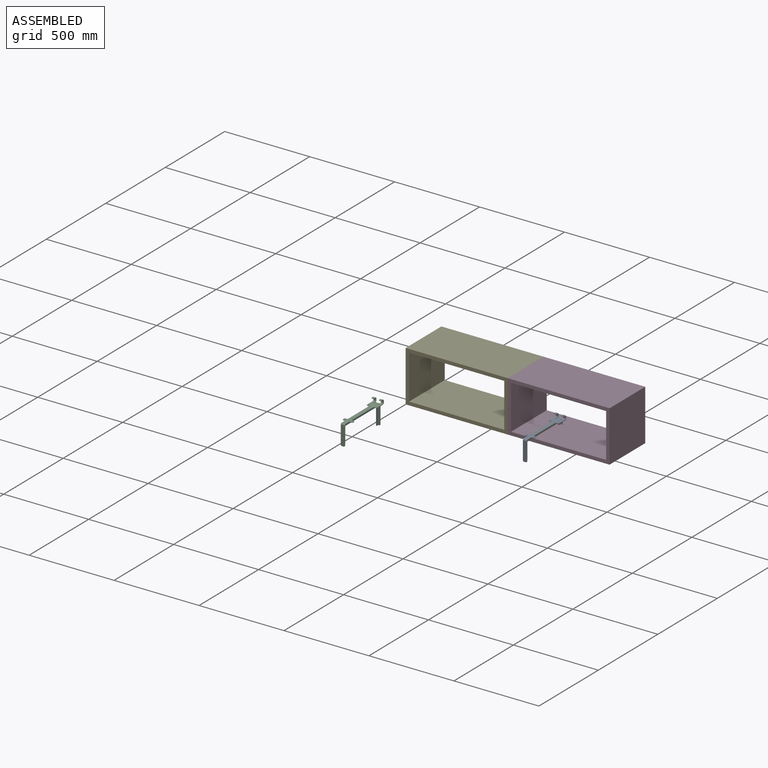
[diagram: assembled view]
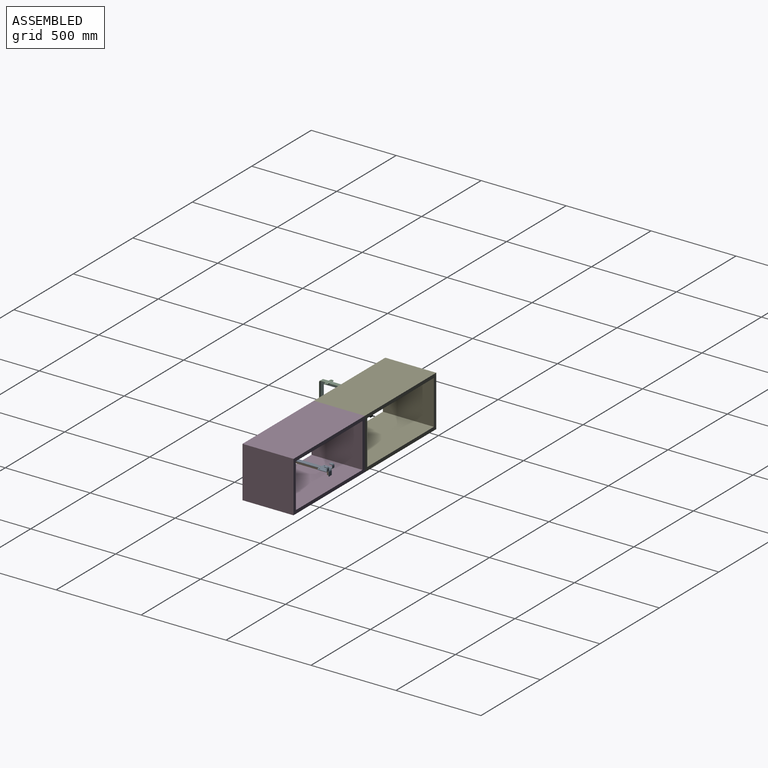
[diagram: assembled view, second angle]
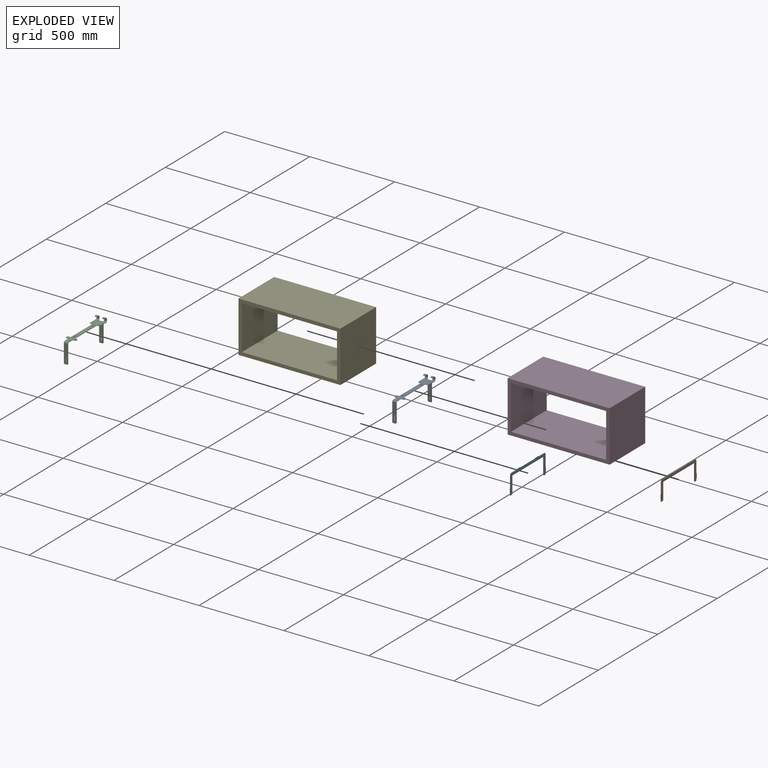
[diagram: exploded view]
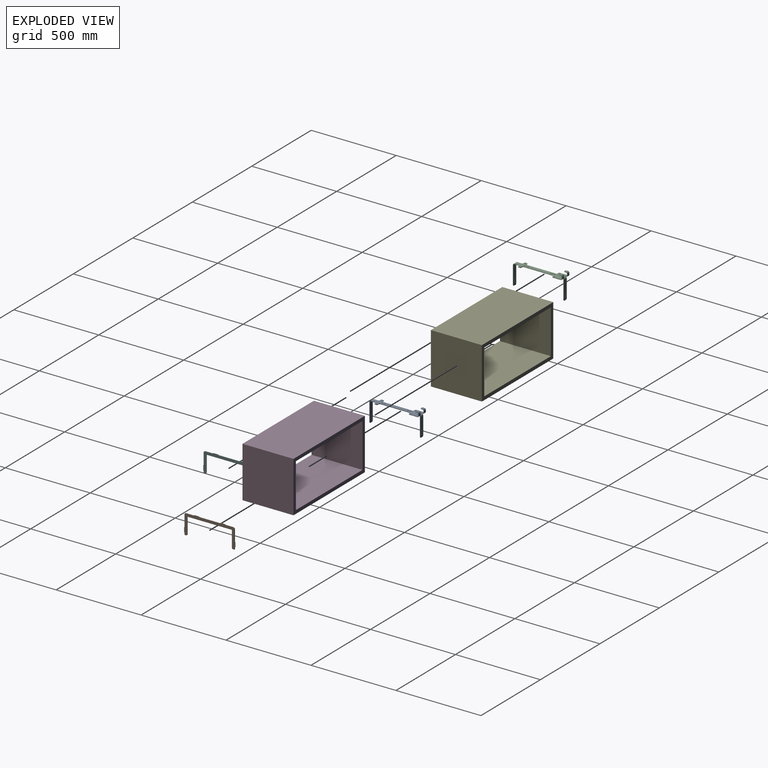
[diagram: exploded view, second angle]
ASSEMBLY  parts=6 mates=3
PART A: 138 faces, bbox 60x303x143 mm
  f0: plane 9.5x3mm, normal (1,0,0), area 28.5mm2, adj f28,f29,f33,f126
  f1: plane 3x1mm, normal (0,1,0), area 3mm2, adj f28,f29,f33,f52
  f2: plane 12.5x3mm, normal (-1,0,0), area 37.5mm2, adj f28,f29,f52,f88
  f3: plane 46x3mm, normal (1,0,0), area 138mm2, adj f28,f29,f42,f89
  f4: plane 6x3mm, normal (0,-1,0), area 18mm2, adj f28,f29,f35,f42
  f5: plane 172x3mm, normal (1,0,0), area 516mm2, adj f28,f29,f31,f35
  f6: plane 6x3mm, normal (0,1,0), area 18mm2, adj f28,f29,f31,f37
  f7: plane 6x3mm, normal (1,0,0), area 18mm2, adj f28,f29,f37,f39
  f8: plane 6x3mm, normal (0,-1,0), area 18mm2, adj f28,f29,f39,f48
  f9: plane 25x3mm, normal (1,0,0), area 75mm2, adj f28,f29,f48,f70
  f10: plane 25x3mm, normal (-1,0,0), area 75mm2, adj f28,f29,f30,f69
  f11: plane 6x3mm, normal (0,-1,0), area 18mm2, adj f28,f29,f30,f34
  f12: plane 6x3mm, normal (-1,0,0), area 18mm2, adj f28,f29,f34,f36
  f13: plane 6x3mm, normal (0,1,0), area 18mm2, adj f28,f29,f36,f44
  f14: plane 172x3mm, normal (-1,0,0), area 516mm2, adj f28,f29,f41,f44
  f15: plane 6x3mm, normal (0,-1,0), area 18mm2, adj f28,f29,f40,f41
  f16: plane 46x3mm, normal (-1,0,0), area 138mm2, adj f28,f29,f40,f107
  f17: plane 12.5x3mm, normal (1,0,0), area 37.5mm2, adj f28,f29,f53,f108
  f18: plane 3x1mm, normal (0,1,0), area 3mm2, adj f28,f29,f51,f53
  f19: plane 9.5x3mm, normal (-1,0,0), area 28.5mm2, adj f28,f29,f51,f127
  f20: plane 29x3mm, normal (1,0,0), area 87mm2, adj f28,f29,f43,f50
  f21: plane 3x2.2mm, normal (0,1,0), area 6.6mm2, adj f28,f29,f32,f50
  f22: plane 29x3mm, normal (-1,0,0), area 87mm2, adj f28,f29,f32,f45
  f23: plane 3x2.2mm, normal (0,-1,0), area 6.6mm2, adj f28,f29,f38,f49
  f24: plane 29x3mm, normal (1,0,0), area 87mm2, adj f28,f29,f38,f46
  f25: plane 3x2.2mm, normal (0,1,0), area 6.6mm2, adj f28,f29,f46,f47
  f26: plane 29x3mm, normal (-1,0,0), area 87mm2, adj f28,f29,f47,f49
  f27: plane 3x2.2mm, normal (0,-1,0), area 6.6mm2, adj f28,f29,f43,f45
  f28: plane 285x60mm, normal (0,0,-1), area 8890.7mm2, adj f0,f1,f2,f3,f4,f5,f6,f7
  f29: plane 285x60mm, normal (0,0,1), area 8981mm2, adj f0,f1,f2,f3,f4,f5,f6,f7
  f30: cylinder r=6mm len=6mm, axis (0,0,-1), area 28.3mm2, adj f10,f11,f28,f29
  f31: cylinder r=6mm len=6mm, axis (0,0,1), area 28.3mm2, adj f5,f6,f28,f29
  f32: cylinder r=0.5mm len=3mm, axis (0,0,-1), area 2.4mm2, adj f21,f22,f28,f29
  f33: cylinder r=0.5mm len=3mm, axis (0,0,1), area 2.4mm2, adj f0,f1,f28,f29
  f34: cylinder r=6mm len=6mm, axis (0,0,1), area 28.3mm2, adj f11,f12,f28,f29
  f35: cylinder r=6mm len=6mm, axis (0,0,-1), area 28.3mm2, adj f4,f5,f28,f29
  f36: cylinder r=6mm len=6mm, axis (0,0,1), area 28.3mm2, adj f12,f13,f28,f29
  f37: cylinder r=6mm len=6mm, axis (0,0,1), area 28.3mm2, adj f6,f7,f28,f29
  f38: cylinder r=0.5mm len=3mm, axis (0,0,1), area 2.4mm2, adj f23,f24,f28,f29
  f39: cylinder r=6mm len=6mm, axis (0,0,1), area 28.3mm2, adj f7,f8,f28,f29
  f40: cylinder r=6mm len=6mm, axis (0,0,-1), area 28.3mm2, adj f15,f16,f28,f29
  f41: cylinder r=6mm len=6mm, axis (0,0,-1), area 28.3mm2, adj f14,f15,f28,f29
  f42: cylinder r=6mm len=6mm, axis (0,0,-1), area 28.3mm2, adj f3,f4,f28,f29
  f43: cylinder r=0.5mm len=3mm, axis (0,0,-1), area 2.4mm2, adj f20,f27,f28,f29
  f44: cylinder r=6mm len=6mm, axis (0,0,1), area 28.3mm2, adj f13,f14,f28,f29
  f45: cylinder r=0.5mm len=3mm, axis (0,0,1), area 2.4mm2, adj f22,f27,f28,f29
  f46: cylinder r=0.5mm len=3mm, axis (0,0,-1), area 2.4mm2, adj f24,f25,f28,f29
  f47: cylinder r=0.5mm len=3mm, axis (0,0,1), area 2.4mm2, adj f25,f26,f28,f29
  f48: cylinder r=6mm len=6mm, axis (0,0,-1), area 28.3mm2, adj f8,f9,f28,f29
  f49: cylinder r=0.5mm len=3mm, axis (0,0,-1), area 2.4mm2, adj f23,f26,f28,f29
  f50: cylinder r=0.5mm len=3mm, axis (0,0,1), area 2.4mm2, adj f20,f21,f28,f29
  f51: cylinder r=0.5mm len=3mm, axis (0,0,1), area 2.4mm2, adj f18,f19,f28,f29
  f52: cylinder r=0.5mm len=3mm, axis (0,0,-1), area 2.4mm2, adj f1,f2,f28,f29
  f53: cylinder r=0.5mm len=3mm, axis (0,0,-1), area 2.4mm2, adj f17,f18,f28,f29
  f54: plane 29x3mm, normal (-1,0,0), area 87mm2, adj f61,f62,f63,f67
  f55: plane 3x2.2mm, normal (0,0,-1), area 6.6mm2, adj f61,f62,f67,f68
  f56: plane 29x3mm, normal (1,0,0), area 87mm2, adj f61,f62,f66,f68
  f57: plane 12x3mm, normal (0,0,-1), area 36mm2, adj f61,f62,f64,f65
  f58: plane 105x3mm, normal (-1,0,0), area 315mm2, adj f61,f62,f65,f69
  f59: plane 105x3mm, normal (1,0,0), area 315mm2, adj f61,f62,f64,f70
  f60: plane 3x2.2mm, normal (0,0,1), area 6.6mm2, adj f61,f62,f63,f66
  f61: plane 111x24mm, normal (0,1,0), area 2552.8mm2, adj f54,f55,f56,f57,f58,f59,f60,f63
  f62: plane 111x24mm, normal (0,-1,0), area 2552.8mm2, adj f54,f55,f56,f57,f58,f59,f60,f63
  f63: cylinder r=0.5mm len=3mm, axis (0,1,0), area 2.4mm2, adj f54,f60,f61,f62
  f64: cylinder r=6mm len=6mm, axis (0,-1,0), area 28.3mm2, adj f57,f59,f61,f62
  f65: cylinder r=6mm len=6mm, axis (0,1,0), area 28.3mm2, adj f57,f58,f61,f62
  f66: cylinder r=0.5mm len=3mm, axis (0,-1,0), area 2.4mm2, adj f56,f60,f61,f62
  f67: cylinder r=0.5mm len=3mm, axis (0,1,0), area 2.4mm2, adj f54,f55,f61,f62
  f68: cylinder r=0.5mm len=3mm, axis (0,-1,0), area 2.4mm2, adj f55,f56,f61,f62
  f69: plane 9x9mm, normal (-1,0,0), area 35.3mm2, adj f10,f58,f71,f72
  f70: plane 9x9mm, normal (1,0,0), area 35.3mm2, adj f9,f59,f71,f72
  f71: cylinder r=9mm len=24mm, axis (-1,0,0), area 339.3mm2, adj f29,f62,f69,f70
  f72: cylinder r=6mm len=24mm, axis (-1,0,0), area 226.2mm2, adj f28,f61,f69,f70
  f73: plane 8x3mm, normal (1,0,0), area 24mm2, adj f75,f76,f85,f89
  f74: plane 8x3mm, normal (-1,0,0), area 24mm2, adj f75,f76,f84,f88
  f75: plane 16x8mm, normal (0,1,0), area 128mm2, adj f73,f74,f86,f90
  f76: plane 16x8mm, normal (0,-1,0), area 128mm2, adj f73,f74,f87,f91
  f77: plane 4x3mm, normal (0,-1,0), area 12mm2, adj f80,f81,f82,f83
  f78: plane 7x3mm, normal (1,0,0), area 21mm2, adj f80,f81,f82,f85
  f79: plane 7x3mm, normal (-1,0,0), area 21mm2, adj f80,f81,f83,f84
  f80: plane 16x13mm, normal (0,0,1), area 192.5mm2, adj f77,f78,f79,f82,f83,f86
  f81: plane 16x13mm, normal (0,0,-1), area 192.5mm2, adj f77,f78,f79,f82,f83,f87
  f82: cylinder r=6mm len=6mm, axis (0,0,1), area 28.3mm2, adj f77,f78,f80,f81
  f83: cylinder r=6mm len=6mm, axis (0,0,-1), area 28.3mm2, adj f77,f79,f80,f81
  f84: plane 9x9mm, normal (-1,0,0), area 35.3mm2, adj f74,f79,f86,f87
  f85: plane 9x9mm, normal (1,0,0), area 35.3mm2, adj f73,f78,f86,f87
  f86: cylinder r=9mm len=16mm, axis (-1,0,0), area 226.2mm2, adj f75,f80,f84,f85
  f87: cylinder r=6mm len=16mm, axis (-1,0,0), area 150.8mm2, adj f76,f81,f84,f85
  f88: plane 9x9mm, normal (-1,0,0), area 35.3mm2, adj f2,f74,f90,f91
  f89: plane 9x9mm, normal (1,0,0), area 35.3mm2, adj f3,f73,f90,f91
  f90: cylinder r=9mm len=16mm, axis (-1,0,0), area 226.2mm2, adj f28,f75,f88,f89
  f91: cylinder r=6mm len=16mm, axis (-1,0,0), area 150.8mm2, adj f29,f76,f88,f89
  f92: plane 8x3mm, normal (-1,0,0), area 24mm2, adj f94,f95,f103,f107
  f93: plane 8x3mm, normal (1,0,0), area 24mm2, adj f94,f95,f104,f108
  f94: plane 16x8mm, normal (0,1,0), area 128mm2, adj f92,f93,f105,f109
  f95: plane 16x8mm, normal (0,-1,0), area 128mm2, adj f92,f93,f106,f110
  f96: plane 7x3mm, normal (-1,0,0), area 21mm2, adj f99,f100,f102,f103
  f97: plane 4x3mm, normal (0,-1,0), area 12mm2, adj f99,f100,f101,f102
  f98: plane 7x3mm, normal (1,0,0), area 21mm2, adj f99,f100,f101,f104
  f99: plane 16x13mm, normal (0,0,1), area 192.5mm2, adj f96,f97,f98,f101,f102,f105
  f100: plane 16x13mm, normal (0,0,-1), area 192.5mm2, adj f96,f97,f98,f101,f102,f106
  f101: cylinder r=6mm len=6mm, axis (0,0,1), area 28.3mm2, adj f97,f98,f99,f100
  f102: cylinder r=6mm len=6mm, axis (0,0,1), area 28.3mm2, adj f96,f97,f99,f100
  f103: plane 9x9mm, normal (-1,0,0), area 35.3mm2, adj f92,f96,f105,f106
  f104: plane 9x9mm, normal (1,0,0), area 35.3mm2, adj f93,f98,f105,f106
  f105: cylinder r=9mm len=16mm, axis (-1,0,0), area 226.2mm2, adj f94,f99,f103,f104
  f106: cylinder r=6mm len=16mm, axis (-1,0,0), area 150.8mm2, adj f95,f100,f103,f104
  f107: plane 9x9mm, normal (-1,0,0), area 35.3mm2, adj f16,f92,f109,f110
  f108: plane 9x9mm, normal (1,0,0), area 35.3mm2, adj f17,f93,f109,f110
  f109: cylinder r=9mm len=16mm, axis (-1,0,0), area 226.2mm2, adj f28,f94,f107,f108
  f110: cylinder r=6mm len=16mm, axis (-1,0,0), area 150.8mm2, adj f29,f95,f107,f108
  f111: plane 29x3mm, normal (1,0,0), area 87mm2, adj f118,f119,f121,f123
  f112: plane 3x2.2mm, normal (0,0,-1), area 6.6mm2, adj f118,f119,f123,f124
  f113: plane 29x3mm, normal (-1,0,0), area 87mm2, adj f118,f119,f120,f124
  f114: plane 12x3mm, normal (0,0,-1), area 36mm2, adj f118,f119,f122,f125
  f115: plane 105x3mm, normal (1,0,0), area 315mm2, adj f118,f119,f122,f126
  f116: plane 105x3mm, normal (-1,0,0), area 315mm2, adj f118,f119,f125,f127
  f117: plane 3x2.2mm, normal (0,0,1), area 6.6mm2, adj f118,f119,f120,f121
  f118: plane 111x24mm, normal (0,-1,0), area 2552.8mm2, adj f111,f112,f113,f114,f115,f116,f117,f120
  f119: plane 111x24mm, normal (0,1,0), area 2552.8mm2, adj f111,f112,f113,f114,f115,f116,f117,f120
  f120: cylinder r=0.5mm len=3mm, axis (0,-1,0), area 2.4mm2, adj f113,f117,f118,f119
  f121: cylinder r=0.5mm len=3mm, axis (0,1,0), area 2.4mm2, adj f111,f117,f118,f119
  f122: cylinder r=6mm len=6mm, axis (0,-1,0), area 28.3mm2, adj f114,f115,f118,f119
  f123: cylinder r=0.5mm len=3mm, axis (0,1,0), area 2.4mm2, adj f111,f112,f118,f119
  f124: cylinder r=0.5mm len=3mm, axis (0,-1,0), area 2.4mm2, adj f112,f113,f118,f119
  f125: cylinder r=6mm len=6mm, axis (0,-1,0), area 28.3mm2, adj f114,f116,f118,f119
  f126: plane 9x9mm, normal (1,0,0), area 35.3mm2, adj f0,f115,f128,f129
  f127: plane 9x9mm, normal (-1,0,0), area 35.3mm2, adj f19,f116,f128,f129
  f128: cylinder r=9mm len=24mm, axis (1,0,0), area 339.3mm2, adj f29,f119,f126,f127
  f129: cylinder r=6mm len=24mm, axis (1,0,0), area 226.2mm2, adj f28,f118,f126,f127
  f130: cylinder r=2.25mm len=4.5mm, axis (0,0,-1), area 24.7mm2, adj f29,f131
  f131: cone r=2.25mm half-angle=45deg, axis (0,0,-1), area 31.9mm2, adj f28,f130
  f132: cylinder r=2.25mm len=4.5mm, axis (0,0,-1), area 24.7mm2, adj f29,f133
  f133: cone r=2.25mm half-angle=45deg, axis (0,0,-1), area 31.9mm2, adj f28,f132
  f134: cylinder r=2.25mm len=4.5mm, axis (0,0,-1), area 24.7mm2, adj f29,f135
  f135: cone r=2.25mm half-angle=45deg, axis (0,0,-1), area 31.9mm2, adj f28,f134
  f136: cylinder r=2.25mm len=4.5mm, axis (0,0,-1), area 24.7mm2, adj f29,f137
  f137: cone r=2.25mm half-angle=45deg, axis (0,0,-1), area 31.9mm2, adj f28,f136
PART B: 50 faces, bbox 3x300x119.5 mm
  f0: plane 3x1.5mm, normal (0,-1,0), area 4.5mm2, adj f24,f25,f28,f38
  f1: plane 27x3mm, normal (0,0,1), area 81mm2, adj f24,f25,f27,f28
  f2: plane 3x1.5mm, normal (0,1,0), area 4.5mm2, adj f24,f25,f26,f27
  f3: plane 125x3mm, normal (0,0,1), area 375mm2, adj f24,f25,f26,f43
  f4: plane 3x1.5mm, normal (0,-1,0), area 4.5mm2, adj f24,f25,f43,f49
  f5: plane 27x3mm, normal (0,0,1), area 81mm2, adj f24,f25,f48,f49
  f6: plane 3x1.5mm, normal (0,1,0), area 4.5mm2, adj f24,f25,f29,f48
  f7: plane 50x3mm, normal (0,0,1), area 150mm2, adj f24,f25,f29,f35
  f8: plane 69.5x3mm, normal (0,1,0), area 208.5mm2, adj f24,f25,f35,f46
  f9: plane 3x1.5mm, normal (0,0,1), area 4.5mm2, adj f24,f25,f46,f47
  f10: plane 27x3mm, normal (0,1,0), area 81mm2, adj f24,f25,f45,f47
  f11: plane 3x1.5mm, normal (0,0,-1), area 4.5mm2, adj f24,f25,f44,f45
  f12: plane 12x3mm, normal (0,1,0), area 36mm2, adj f24,f25,f37,f44
  f13: plane 9.5x3mm, normal (0,0,-1), area 28.5mm2, adj f24,f25,f31,f37
  f14: plane 94.5x3mm, normal (0,-1,0), area 283.5mm2, adj f24,f25,f31,f40
  f15: plane 262x3mm, normal (0,0,-1), area 786mm2, adj f24,f25,f36,f40
  f16: plane 94.5x3mm, normal (0,1,0), area 283.5mm2, adj f24,f25,f36,f39
  f17: plane 9.5x3mm, normal (0,0,-1), area 28.5mm2, adj f24,f25,f39,f41
  f18: plane 12x3mm, normal (0,-1,0), area 36mm2, adj f24,f25,f41,f42
  f19: plane 3x1.5mm, normal (0,0,-1), area 4.5mm2, adj f24,f25,f33,f42
  f20: plane 27x3mm, normal (0,-1,0), area 81mm2, adj f24,f25,f30,f33
  f21: plane 3x1.5mm, normal (0,0,1), area 4.5mm2, adj f24,f25,f30,f32
  f22: plane 69.5x3mm, normal (0,-1,0), area 208.5mm2, adj f24,f25,f32,f34
  f23: plane 50x3mm, normal (0,0,1), area 150mm2, adj f24,f25,f34,f38
  f24: plane 300x119.5mm, normal (-1,0,0), area 8180.5mm2, adj f0,f1,f2,f3,f4,f5,f6,f7
  f25: plane 300x119.5mm, normal (1,0,0), area 8180.5mm2, adj f0,f1,f2,f3,f4,f5,f6,f7
  f26: cylinder r=0.5mm len=3mm, axis (1,0,0), area 2.4mm2, adj f2,f3,f24,f25
  f27: cylinder r=0.5mm len=3mm, axis (1,0,0), area 2.4mm2, adj f1,f2,f24,f25
  f28: cylinder r=0.5mm len=3mm, axis (-1,0,0), area 2.4mm2, adj f0,f1,f24,f25
  f29: cylinder r=0.5mm len=3mm, axis (-1,0,0), area 2.4mm2, adj f6,f7,f24,f25
  f30: cylinder r=0.5mm len=3mm, axis (1,0,0), area 2.4mm2, adj f20,f21,f24,f25
  f31: cylinder r=6mm len=6mm, axis (-1,0,0), area 28.3mm2, adj f13,f14,f24,f25
  f32: cylinder r=0.5mm len=3mm, axis (1,0,0), area 2.4mm2, adj f21,f22,f24,f25
  f33: cylinder r=0.5mm len=3mm, axis (-1,0,0), area 2.4mm2, adj f19,f20,f24,f25
  f34: plane 6x6mm, normal (0,-0.71,0.71), area 25.5mm2, adj f22,f23,f24,f25
  f35: plane 6x6mm, normal (0,0.71,0.71), area 25.5mm2, adj f7,f8,f24,f25
  f36: cylinder r=0.5mm len=3mm, axis (1,0,0), area 2.4mm2, adj f15,f16,f24,f25
  f37: cylinder r=0.5mm len=3mm, axis (-1,0,0), area 2.4mm2, adj f12,f13,f24,f25
  f38: cylinder r=0.5mm len=3mm, axis (-1,0,0), area 2.4mm2, adj f0,f23,f24,f25
  f39: cylinder r=6mm len=6mm, axis (-1,0,0), area 28.3mm2, adj f16,f17,f24,f25
  f40: cylinder r=0.5mm len=3mm, axis (-1,0,0), area 2.4mm2, adj f14,f15,f24,f25
  f41: cylinder r=0.5mm len=3mm, axis (-1,0,0), area 2.4mm2, adj f17,f18,f24,f25
  f42: cylinder r=0.5mm len=3mm, axis (-1,0,0), area 2.4mm2, adj f18,f19,f24,f25
  f43: cylinder r=0.5mm len=3mm, axis (-1,0,0), area 2.4mm2, adj f3,f4,f24,f25
  f44: cylinder r=0.5mm len=3mm, axis (-1,0,0), area 2.4mm2, adj f11,f12,f24,f25
  f45: cylinder r=0.5mm len=3mm, axis (-1,0,0), area 2.4mm2, adj f10,f11,f24,f25
  f46: cylinder r=0.5mm len=3mm, axis (1,0,0), area 2.4mm2, adj f8,f9,f24,f25
  f47: cylinder r=0.5mm len=3mm, axis (1,0,0), area 2.4mm2, adj f9,f10,f24,f25
  f48: cylinder r=0.5mm len=3mm, axis (-1,0,0), area 2.4mm2, adj f5,f6,f24,f25
  f49: cylinder r=0.5mm len=3mm, axis (1,0,0), area 2.4mm2, adj f4,f5,f24,f25
PART C: same geometry as A
PART D: 10 faces, bbox 600x300x300 mm
  f0: plane 600x300mm, normal (0,0,1), area 180000mm2, adj f1,f7,f8,f9
  f1: plane 300x300mm, normal (-1,0,0), area 90000mm2, adj f0,f2,f8,f9
  f2: plane 600x300mm, normal (0,0,-1), area 180000mm2, adj f1,f7,f8,f9
  f3: plane 560x300mm, normal (0,0,-1), area 168000mm2, adj f4,f6,f8,f9
  f4: plane 300x260mm, normal (-1,0,0), area 78000mm2, adj f3,f5,f8,f9
  f5: plane 560x300mm, normal (0,0,1), area 168000mm2, adj f4,f6,f8,f9
  f6: plane 300x260mm, normal (1,0,0), area 78000mm2, adj f3,f5,f8,f9
  f7: plane 300x300mm, normal (1,0,0), area 90000mm2, adj f0,f2,f8,f9
  f8: plane 600x300mm, normal (0,-1,0), area 34400mm2, adj f0,f1,f2,f3,f4,f5,f6,f7
  f9: plane 600x300mm, normal (0,1,0), area 34400mm2, adj f0,f1,f2,f3,f4,f5,f6,f7
PART E: same geometry as D
PART F: same geometry as B
PLACE A t=(387.88,335.11,75.5)mm
PLACE B t=(386.48,335.11,-41)mm
PLACE C t=(-445.19,-6.25,66.17)mm
PLACE D t=(524.11,423.56,176.88)mm
PLACE E t=(-75.89,423.56,176.88)mm
PLACE F t=(-446.59,-6.25,-50.33)mm
MATE fastened B.f25 <-> A.f26  axis (1,0,0) through (389.48,258.11,78.5)mm
MATE fastened E.f7 <-> D.f1  axis (1,0,0) through (224.11,423.56,176.88)mm
MATE fastened F.f25 <-> C.f26  axis (1,0,0) through (-443.59,-83.25,69.17)mm
